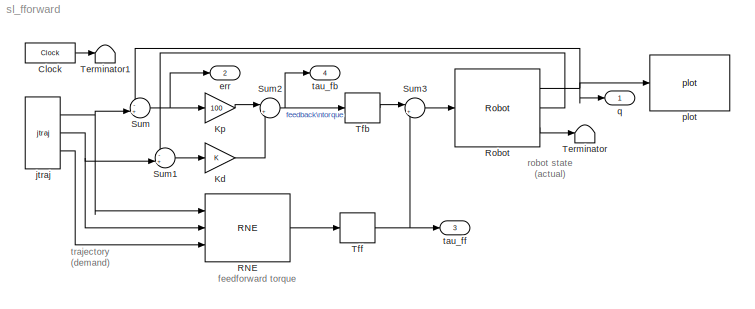
MODEL sl_fforward
KIND model
BLOCK [Clock] Clock
  DisplayTime = on
  SID = 1
BLOCK [Gain] Kd
  SID = 2
BLOCK [Gain] Kp
  Gain = 100
  SID = 3
BLOCK [Reference] RNE  REF=roblocks/Dynamics/RNE  (lib defined in mdl_2a292b13c81b, mdl_69400f8cfe22, +12 more)
  Ports = [3, 1]
  SID = 4
  SourceBlock = roblocks/Dynamics/RNE
  grav = [0 0 9.81]
  robot = p560.nofriction()
BLOCK [Reference] Robot  REF=roblocks/Dynamics/Robot  (lib defined in mdl_2a292b13c81b, mdl_69400f8cfe22, +12 more)
  Ports = [1, 3]
  SID = 5
  SourceBlock = roblocks/Dynamics/Robot
  q0 = [0 0 0 0 0 0]
  robot = p560
BLOCK [Sum] Sum
  IconShape = round
  Inputs = -+|
  Ports = [2, 1]
  SID = 6
BLOCK [Sum] Sum1
  IconShape = round
  Inputs = -+|
  Ports = [2, 1]
  SID = 7
BLOCK [Sum] Sum2
  IconShape = round
  Inputs = |++
  Ports = [2, 1]
  SID = 8
BLOCK [Sum] Sum3
  IconShape = round
  Inputs = |++
  Ports = [2, 1]
  SID = 9
BLOCK [Terminator] Terminator
  SID = 10
BLOCK [Terminator] Terminator1
  SID = 20
BLOCK [ZeroOrderHold] Tfb
  SID = 11
  SampleTime = 0.01
BLOCK [ZeroOrderHold] Tff
  SID = 12
  SampleTime = 0.01
BLOCK [Outport] err
  IconDisplay = Port number
  Port = 2
  SID = 16
BLOCK [Reference] jtraj  REF=roblocks/Trajectory/jtraj  (lib defined in mdl_2a292b13c81b, mdl_69400f8cfe22, +12 more)
  Ports = [0, 3]
  SID = 19
  SourceBlock = roblocks/Trajectory/jtraj
  q0 = [0 0 0 0 0 0]
  qf = [pi/4 pi/2 -pi/2 0 0 0]
  tmax = 10
  ts = 0.02
BLOCK [Reference] plot  REF=roblocks/Robot Graphics/plot  (lib defined in mdl_2a292b13c81b, mdl_69400f8cfe22, +12 more)
  Ports = [1]
  SID = 14
  SourceBlock = roblocks/Robot Graphics/plot
  fps = 25
  holdplot = on
  robot = p560
BLOCK [Outport] q
  IconDisplay = Port number
  SID = 15
BLOCK [Outport] tau_fb
  IconDisplay = Port number
  Port = 4
  SID = 18
BLOCK [Outport] tau_ff
  IconDisplay = Port number
  Port = 3
  SID = 17
ANNOTATION (root): feedforward torque
ANNOTATION (root): robot state\n(actual)
ANNOTATION (root): trajectory\n(demand)
LINE Clock:1 -> Terminator1:1
LINE Kd:1 -> Sum2:2
LINE Kp:1 -> Sum2:1
LINE RNE:1 -> Tff:1
NET Robot:1 -> Sum:1, plot:1, q:1
LINE Robot:2 -> Sum1:1
LINE Robot:3 -> Terminator:1
LINE Sum1:1 -> Kd:1
NET Sum2:1 -> Tfb:1, tau_fb:1
LINE Sum3:1 -> Robot:1
NET Sum:1 -> Kp:1, err:1
LINE Tfb:1 -> Sum3:1
NET Tff:1 -> Sum3:2, tau_ff:1
NET jtraj:1 -> RNE:1, Sum:2
NET jtraj:2 -> RNE:2, Sum1:2
LINE jtraj:3 -> RNE:3
note: NET lines group one-source signal fan-out (src -> all destinations, sorted); 1:1 wires keep LINE
